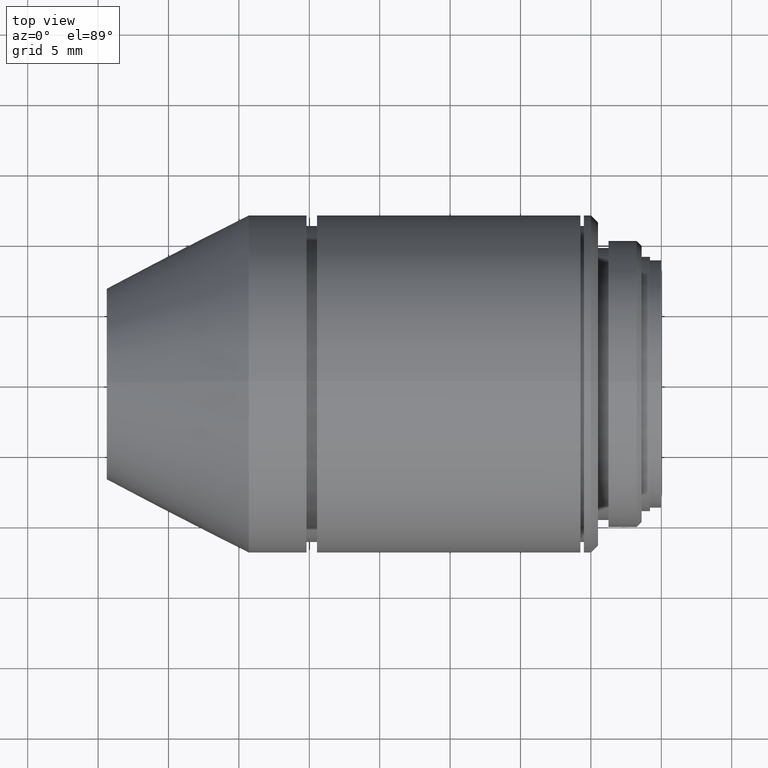
[diagram: clean part render]
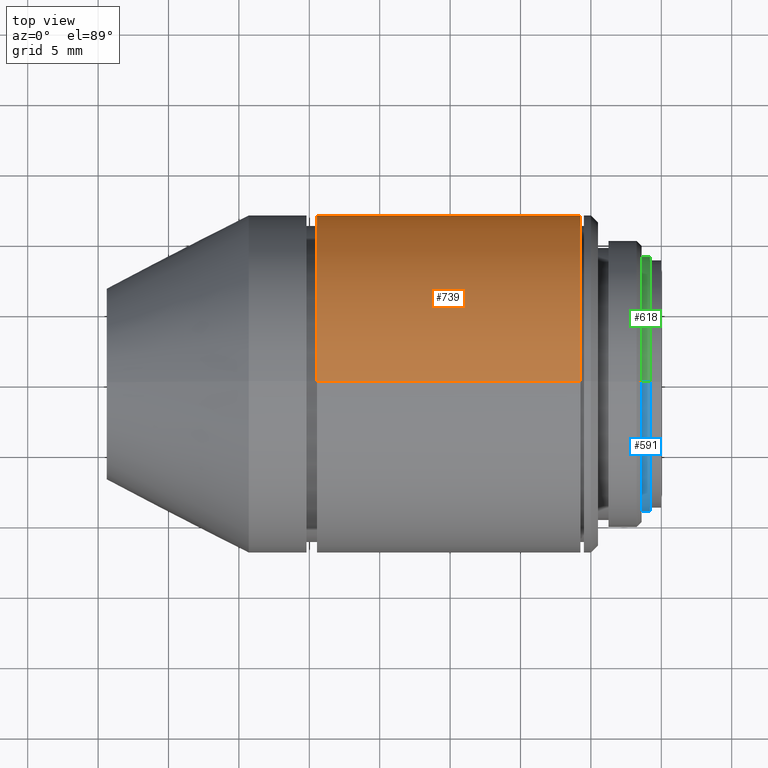
[diagram: same view with three faces highlighted in distinct colors, each labeled with its STEP entity id]
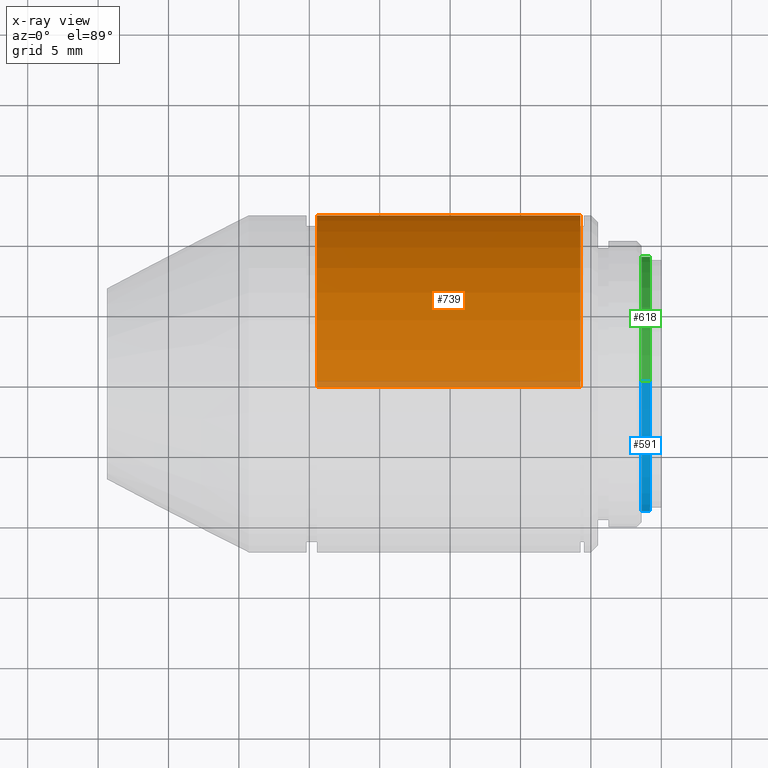
[diagram: x-ray of the same camera — body ghosted, the three highlighted faces saturated]
A machine part, top view with three faces highlighted in distinct colors.
The next image is the same camera in x-ray (body ghosted, the three faces saturated) — at least one of them is partly hidden behind the body in this view.
Their STEP definitions:

[orange] entity #739 — the highlighted cylindrical surface (partial cylindrical patch) has radius 12 mm, axis along (1, 0, 0).
#19 = AXIS2_PLACEMENT_3D ( 'NONE', #491, #877, #51 ) ;
#47 = CIRCLE ( 'NONE', #203, 12.00000000000000000 ) ;
#51 = DIRECTION ( 'NONE',  ( 0.000000000000000000, 0.000000000000000000, -1.000000000000000000 ) ) ;
#55 = CARTESIAN_POINT ( 'NONE',  ( -24.44999999999999929, 1.469576158976823947E-15, 12.00000000000000000 ) ) ;
#60 = VECTOR ( 'NONE', #376, 1000.000000000000000 ) ;
#62 = EDGE_LOOP ( 'NONE', ( #408, #575, #701, #369 ) ) ;
#65 = CARTESIAN_POINT ( 'NONE',  ( 29.85526709101650056, 1.469576158976821975E-15, 12.00000000000000000 ) ) ;
#139 = EDGE_CURVE ( 'NONE', #934, #257, #694, .T. ) ;
#158 = VERTEX_POINT ( 'NONE', #863 ) ;
#191 = VECTOR ( 'NONE', #501, 1000.000000000000000 ) ;
#193 = CARTESIAN_POINT ( 'NONE',  ( -24.44999999999999929, 0.000000000000000000, 0.000000000000000000 ) ) ;
#203 = AXIS2_PLACEMENT_3D ( 'NONE', #420, #714, #645 ) ;
#257 = VERTEX_POINT ( 'NONE', #55 ) ;
#309 = LINE ( 'NONE', #760, #60 ) ;
#340 = DIRECTION ( 'NONE',  ( 0.000000000000000000, 0.000000000000000000, -1.000000000000000000 ) ) ;
#344 = EDGE_CURVE ( 'NONE', #158, #393, #47, .T. ) ;
#369 = ORIENTED_EDGE ( 'NONE', *, *, #506, .F. ) ;
#376 = DIRECTION ( 'NONE',  ( 1.000000000000000000, 0.000000000000000000, 0.000000000000000000 ) ) ;
#381 = CARTESIAN_POINT ( 'NONE',  ( -5.750000000000000000, 1.469576158976821975E-15, 12.00000000000000000 ) ) ;
#393 = VERTEX_POINT ( 'NONE', #381 ) ;
#408 = ORIENTED_EDGE ( 'NONE', *, *, #139, .T. ) ;
#420 = CARTESIAN_POINT ( 'NONE',  ( -5.750000000000000000, 0.000000000000000000, 0.000000000000000000 ) ) ;
#491 = CARTESIAN_POINT ( 'NONE',  ( 29.85526709101650056, 0.000000000000000000, 0.000000000000000000 ) ) ;
#501 = DIRECTION ( 'NONE',  ( 1.000000000000000000, 0.000000000000000000, 0.000000000000000000 ) ) ;
#506 = EDGE_CURVE ( 'NONE', #934, #158, #309, .T. ) ;
#512 = FACE_OUTER_BOUND ( 'NONE', #62, .T. ) ;
#575 = ORIENTED_EDGE ( 'NONE', *, *, #784, .T. ) ;
#645 = DIRECTION ( 'NONE',  ( 0.000000000000000000, 0.000000000000000000, -1.000000000000000000 ) ) ;
#694 = CIRCLE ( 'NONE', #759, 12.00000000000000000 ) ;
#701 = ORIENTED_EDGE ( 'NONE', *, *, #344, .F. ) ;
#707 = DIRECTION ( 'NONE',  ( 1.000000000000000000, 0.000000000000000000, 0.000000000000000000 ) ) ;
#714 = DIRECTION ( 'NONE',  ( 1.000000000000000000, 0.000000000000000000, 0.000000000000000000 ) ) ;
#739 = ADVANCED_FACE ( 'NONE', ( #512 ), #794, .T. ) ;
#750 = CARTESIAN_POINT ( 'NONE',  ( -24.44999999999999929, 0.000000000000000000, -12.00000000000000000 ) ) ;
#759 = AXIS2_PLACEMENT_3D ( 'NONE', #193, #707, #340 ) ;
#760 = CARTESIAN_POINT ( 'NONE',  ( 29.85526709101650056, 0.000000000000000000, -12.00000000000000000 ) ) ;
#784 = EDGE_CURVE ( 'NONE', #257, #393, #862, .T. ) ;
#794 = CYLINDRICAL_SURFACE ( 'NONE', #19, 12.00000000000000000 ) ;
#862 = LINE ( 'NONE', #65, #191 ) ;
#863 = CARTESIAN_POINT ( 'NONE',  ( -5.750000000000000000, 0.000000000000000000, -12.00000000000000000 ) ) ;
#877 = DIRECTION ( 'NONE',  ( 1.000000000000000000, 0.000000000000000000, 0.000000000000000000 ) ) ;
#934 = VERTEX_POINT ( 'NONE', #750 ) ;

[blue] entity #591 — the highlighted cylindrical surface (partial cylindrical patch) has radius 9.06 mm, axis along (1, 0, 0).
#27 = FACE_OUTER_BOUND ( 'NONE', #910, .T. ) ;
#94 = ORIENTED_EDGE ( 'NONE', *, *, #636, .T. ) ;
#96 = CIRCLE ( 'NONE', #481, 9.060000000000000497 ) ;
#149 = VERTEX_POINT ( 'NONE', #196 ) ;
#196 = CARTESIAN_POINT ( 'NONE',  ( -0.8000000000000000444, 0.000000000000000000, -9.060000000000000497 ) ) ;
#210 = EDGE_CURVE ( 'NONE', #285, #920, #649, .T. ) ;
#212 = CARTESIAN_POINT ( 'NONE',  ( -1.399999999999999911, 1.109530000027499993E-15, 9.060000000000000497 ) ) ;
#219 = CARTESIAN_POINT ( 'NONE',  ( 29.85526709101650056, 1.109530000027499993E-15, 9.060000000000000497 ) ) ;
#244 = CARTESIAN_POINT ( 'NONE',  ( -0.8000000000000000444, 0.000000000000000000, 0.000000000000000000 ) ) ;
#253 = VECTOR ( 'NONE', #881, 1000.000000000000000 ) ;
#274 = ORIENTED_EDGE ( 'NONE', *, *, #494, .F. ) ;
#285 = VERTEX_POINT ( 'NONE', #212 ) ;
#291 = LINE ( 'NONE', #219, #253 ) ;
#326 = CYLINDRICAL_SURFACE ( 'NONE', #527, 9.060000000000000497 ) ;
#332 = LINE ( 'NONE', #629, #761 ) ;
#414 = DIRECTION ( 'NONE',  ( 0.000000000000000000, 0.000000000000000000, -1.000000000000000000 ) ) ;
#446 = DIRECTION ( 'NONE',  ( 1.000000000000000000, 0.000000000000000000, 0.000000000000000000 ) ) ;
#464 = ORIENTED_EDGE ( 'NONE', *, *, #210, .T. ) ;
#465 = DIRECTION ( 'NONE',  ( 0.000000000000000000, 0.000000000000000000, -1.000000000000000000 ) ) ;
#481 = AXIS2_PLACEMENT_3D ( 'NONE', #244, #446, #465 ) ;
#494 = EDGE_CURVE ( 'NONE', #781, #149, #96, .T. ) ;
#527 = AXIS2_PLACEMENT_3D ( 'NONE', #840, #538, #848 ) ;
#538 = DIRECTION ( 'NONE',  ( 1.000000000000000000, 0.000000000000000000, 0.000000000000000000 ) ) ;
#539 = AXIS2_PLACEMENT_3D ( 'NONE', #860, #783, #414 ) ;
#591 = ADVANCED_FACE ( 'NONE', ( #27 ), #326, .T. ) ;
#629 = CARTESIAN_POINT ( 'NONE',  ( 29.85526709101650056, 0.000000000000000000, -9.060000000000000497 ) ) ;
#636 = EDGE_CURVE ( 'NONE', #920, #149, #332, .T. ) ;
#648 = ORIENTED_EDGE ( 'NONE', *, *, #837, .F. ) ;
#649 = CIRCLE ( 'NONE', #539, 9.060000000000000497 ) ;
#729 = CARTESIAN_POINT ( 'NONE',  ( -0.8000000000000000444, 1.109530000027499993E-15, 9.060000000000000497 ) ) ;
#761 = VECTOR ( 'NONE', #929, 1000.000000000000000 ) ;
#781 = VERTEX_POINT ( 'NONE', #729 ) ;
#783 = DIRECTION ( 'NONE',  ( 1.000000000000000000, 0.000000000000000000, 0.000000000000000000 ) ) ;
#825 = CARTESIAN_POINT ( 'NONE',  ( -1.399999999999999911, 0.000000000000000000, -9.060000000000000497 ) ) ;
#837 = EDGE_CURVE ( 'NONE', #285, #781, #291, .T. ) ;
#840 = CARTESIAN_POINT ( 'NONE',  ( 29.85526709101650056, 0.000000000000000000, 0.000000000000000000 ) ) ;
#848 = DIRECTION ( 'NONE',  ( 0.000000000000000000, 0.000000000000000000, -1.000000000000000000 ) ) ;
#860 = CARTESIAN_POINT ( 'NONE',  ( -1.399999999999999911, 0.000000000000000000, 0.000000000000000000 ) ) ;
#881 = DIRECTION ( 'NONE',  ( 1.000000000000000000, 0.000000000000000000, 0.000000000000000000 ) ) ;
#910 = EDGE_LOOP ( 'NONE', ( #648, #464, #94, #274 ) ) ;
#920 = VERTEX_POINT ( 'NONE', #825 ) ;
#929 = DIRECTION ( 'NONE',  ( 1.000000000000000000, 0.000000000000000000, 0.000000000000000000 ) ) ;

[green] entity #618 — the highlighted cylindrical surface (partial cylindrical patch) has radius 9.06 mm, axis along (1, 0, 0).
#29 = EDGE_LOOP ( 'NONE', ( #242, #737, #528, #70 ) ) ;
#41 = FACE_OUTER_BOUND ( 'NONE', #29, .T. ) ;
#70 = ORIENTED_EDGE ( 'NONE', *, *, #636, .F. ) ;
#105 = CARTESIAN_POINT ( 'NONE',  ( 29.85526709101650056, 0.000000000000000000, 0.000000000000000000 ) ) ;
#110 = DIRECTION ( 'NONE',  ( 0.000000000000000000, 0.000000000000000000, -1.000000000000000000 ) ) ;
#149 = VERTEX_POINT ( 'NONE', #196 ) ;
#177 = DIRECTION ( 'NONE',  ( 1.000000000000000000, 0.000000000000000000, 0.000000000000000000 ) ) ;
#196 = CARTESIAN_POINT ( 'NONE',  ( -0.8000000000000000444, 0.000000000000000000, -9.060000000000000497 ) ) ;
#212 = CARTESIAN_POINT ( 'NONE',  ( -1.399999999999999911, 1.109530000027499993E-15, 9.060000000000000497 ) ) ;
#219 = CARTESIAN_POINT ( 'NONE',  ( 29.85526709101650056, 1.109530000027499993E-15, 9.060000000000000497 ) ) ;
#242 = ORIENTED_EDGE ( 'NONE', *, *, #936, .T. ) ;
#253 = VECTOR ( 'NONE', #881, 1000.000000000000000 ) ;
#285 = VERTEX_POINT ( 'NONE', #212 ) ;
#291 = LINE ( 'NONE', #219, #253 ) ;
#296 = DIRECTION ( 'NONE',  ( 1.000000000000000000, 0.000000000000000000, 0.000000000000000000 ) ) ;
#308 = CARTESIAN_POINT ( 'NONE',  ( -1.399999999999999911, 0.000000000000000000, 0.000000000000000000 ) ) ;
#332 = LINE ( 'NONE', #629, #761 ) ;
#453 = CIRCLE ( 'NONE', #496, 9.060000000000000497 ) ;
#468 = AXIS2_PLACEMENT_3D ( 'NONE', #105, #547, #110 ) ;
#471 = DIRECTION ( 'NONE',  ( 0.000000000000000000, 0.000000000000000000, -1.000000000000000000 ) ) ;
#496 = AXIS2_PLACEMENT_3D ( 'NONE', #308, #296, #588 ) ;
#528 = ORIENTED_EDGE ( 'NONE', *, *, #671, .F. ) ;
#547 = DIRECTION ( 'NONE',  ( 1.000000000000000000, 0.000000000000000000, 0.000000000000000000 ) ) ;
#588 = DIRECTION ( 'NONE',  ( 0.000000000000000000, 0.000000000000000000, -1.000000000000000000 ) ) ;
#589 = CIRCLE ( 'NONE', #711, 9.060000000000000497 ) ;
#618 = ADVANCED_FACE ( 'NONE', ( #41 ), #621, .T. ) ;
#621 = CYLINDRICAL_SURFACE ( 'NONE', #468, 9.060000000000000497 ) ;
#629 = CARTESIAN_POINT ( 'NONE',  ( 29.85526709101650056, 0.000000000000000000, -9.060000000000000497 ) ) ;
#636 = EDGE_CURVE ( 'NONE', #920, #149, #332, .T. ) ;
#637 = CARTESIAN_POINT ( 'NONE',  ( -0.8000000000000000444, 0.000000000000000000, 0.000000000000000000 ) ) ;
#671 = EDGE_CURVE ( 'NONE', #149, #781, #589, .T. ) ;
#711 = AXIS2_PLACEMENT_3D ( 'NONE', #637, #177, #471 ) ;
#729 = CARTESIAN_POINT ( 'NONE',  ( -0.8000000000000000444, 1.109530000027499993E-15, 9.060000000000000497 ) ) ;
#737 = ORIENTED_EDGE ( 'NONE', *, *, #837, .T. ) ;
#761 = VECTOR ( 'NONE', #929, 1000.000000000000000 ) ;
#781 = VERTEX_POINT ( 'NONE', #729 ) ;
#825 = CARTESIAN_POINT ( 'NONE',  ( -1.399999999999999911, 0.000000000000000000, -9.060000000000000497 ) ) ;
#837 = EDGE_CURVE ( 'NONE', #285, #781, #291, .T. ) ;
#881 = DIRECTION ( 'NONE',  ( 1.000000000000000000, 0.000000000000000000, 0.000000000000000000 ) ) ;
#920 = VERTEX_POINT ( 'NONE', #825 ) ;
#929 = DIRECTION ( 'NONE',  ( 1.000000000000000000, 0.000000000000000000, 0.000000000000000000 ) ) ;
#936 = EDGE_CURVE ( 'NONE', #920, #285, #453, .T. ) ;